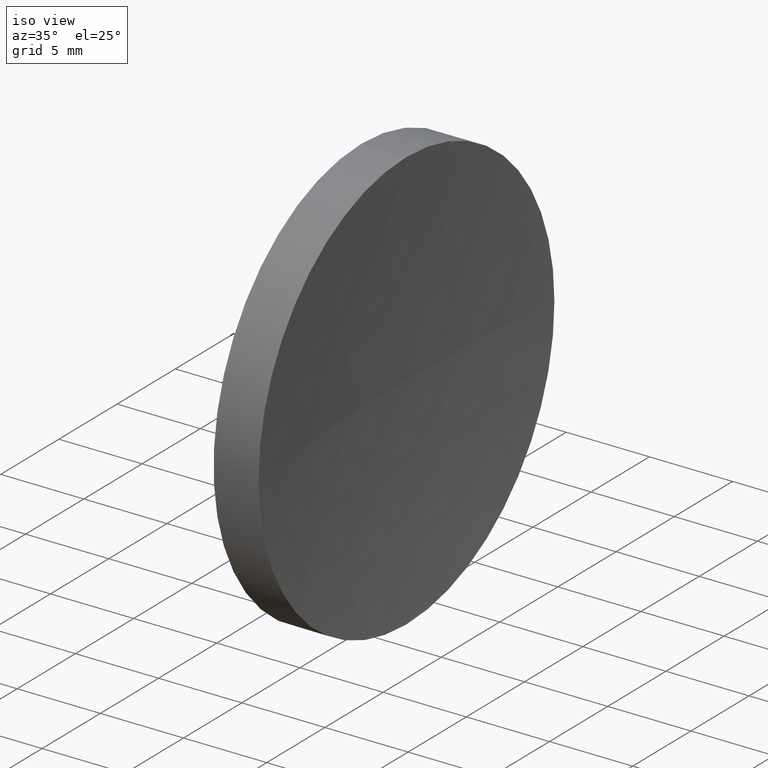
[diagram: clean part render]
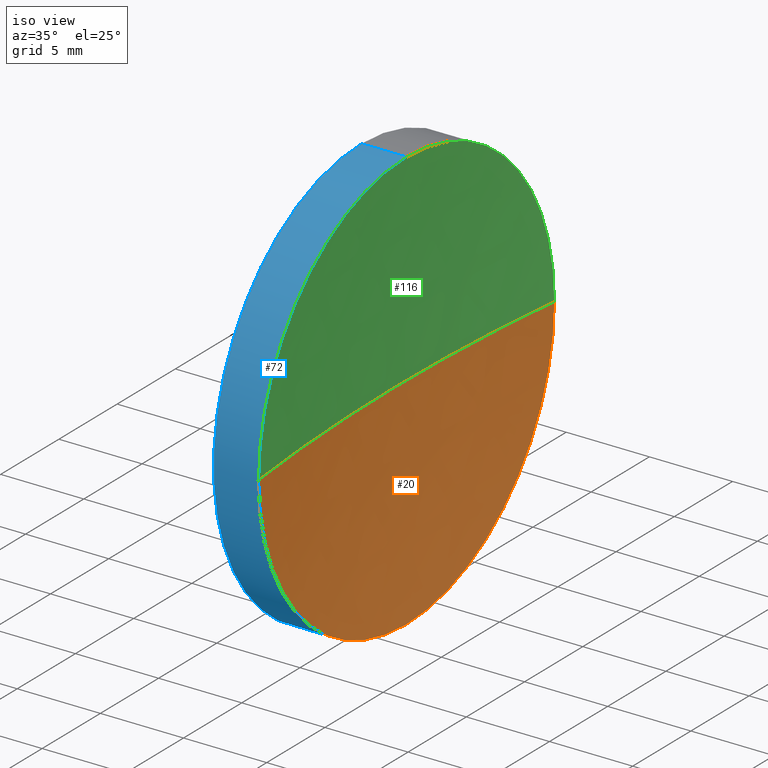
[diagram: same view with three faces highlighted in distinct colors, each labeled with its STEP entity id]
A machine part, iso view with three faces highlighted in distinct colors.
Their STEP definitions:

[orange] entity #20 — the highlighted spherical surface has radius 114.62 mm.
#2 = DIRECTION ( 'NONE',  ( -1.000000000000000000, -0.0000000000000000000, -0.0000000000000000000 ) ) ;
#4 = DIRECTION ( 'NONE',  ( 0.0000000000000000000, 0.0000000000000000000, 1.000000000000000000 ) ) ;
#7 = DIRECTION ( 'NONE',  ( -1.000000000000000000, -0.0000000000000000000, -0.0000000000000000000 ) ) ;
#9 = EDGE_CURVE ( 'NONE', #12, #182, #91, .T. ) ;
#12 = VERTEX_POINT ( 'NONE', #58 ) ;
#17 = AXIS2_PLACEMENT_3D ( 'NONE', #149, #174, #31 ) ;
#20 = ADVANCED_FACE ( 'NONE', ( #88 ), #170, .F. ) ;
#22 = VERTEX_POINT ( 'NONE', #176 ) ;
#24 = CIRCLE ( 'NONE', #29, 12.69999999999997400 ) ;
#26 = EDGE_CURVE ( 'NONE', #37, #182, #133, .T. ) ;
#29 = AXIS2_PLACEMENT_3D ( 'NONE', #81, #2, #95 ) ;
#31 = DIRECTION ( 'NONE',  ( 0.0000000000000000000, -1.000000000000000000, 0.0000000000000000000 ) ) ;
#37 = VERTEX_POINT ( 'NONE', #147 ) ;
#40 = CARTESIAN_POINT ( 'NONE',  ( 235.9829307920347200, 71.19398908659371700, 0.0000000000000000000 ) ) ;
#43 = EDGE_CURVE ( 'NONE', #37, #22, #24, .T. ) ;
#46 = ORIENTED_EDGE ( 'NONE', *, *, #43, .F. ) ;
#56 = CIRCLE ( 'NONE', #96, 12.69999999999997400 ) ;
#58 = CARTESIAN_POINT ( 'NONE',  ( 122.0686893645468100, 58.49398908659369300, 0.0000000000000000000 ) ) ;
#81 = CARTESIAN_POINT ( 'NONE',  ( 122.0686893645468100, 71.19398908659370300, 0.0000000000000000000 ) ) ;
#82 = DIRECTION ( 'NONE',  ( 0.0000000000000000000, -1.000000000000000000, -1.224646799147353000E-016 ) ) ;
#88 = FACE_OUTER_BOUND ( 'NONE', #105, .T. ) ;
#91 = CIRCLE ( 'NONE', #175, 114.6200000000000200 ) ;
#95 = DIRECTION ( 'NONE',  ( 0.0000000000000000000, 0.0000000000000000000, 1.000000000000000000 ) ) ;
#96 = AXIS2_PLACEMENT_3D ( 'NONE', #114, #7, #4 ) ;
#98 = CARTESIAN_POINT ( 'NONE',  ( 121.3629307920347000, 71.19398908659370300, 0.0000000000000000000 ) ) ;
#105 = EDGE_LOOP ( 'NONE', ( #46, #158, #131, #145 ) ) ;
#114 = CARTESIAN_POINT ( 'NONE',  ( 122.0686893645468100, 71.19398908659370300, 0.0000000000000000000 ) ) ;
#125 = DIRECTION ( 'NONE',  ( -1.000000000000000000, 0.0000000000000000000, 0.0000000000000000000 ) ) ;
#128 = DIRECTION ( 'NONE',  ( 0.0000000000000000000, 0.0000000000000000000, -1.000000000000000000 ) ) ;
#129 = DIRECTION ( 'NONE',  ( 0.0000000000000000000, -1.224646799147353200E-016, 1.000000000000000000 ) ) ;
#131 = ORIENTED_EDGE ( 'NONE', *, *, #9, .F. ) ;
#133 = CIRCLE ( 'NONE', #171, 114.6200000000000200 ) ;
#145 = ORIENTED_EDGE ( 'NONE', *, *, #156, .F. ) ;
#147 = CARTESIAN_POINT ( 'NONE',  ( 122.0686893645468100, 83.89398908659373400, 1.555301434917139600E-015 ) ) ;
#149 = CARTESIAN_POINT ( 'NONE',  ( 235.9829307920347200, 71.19398908659371700, 0.0000000000000000000 ) ) ;
#156 = EDGE_CURVE ( 'NONE', #22, #12, #56, .T. ) ;
#158 = ORIENTED_EDGE ( 'NONE', *, *, #26, .T. ) ;
#164 = CARTESIAN_POINT ( 'NONE',  ( 235.9829307920347200, 71.19398908659371700, 0.0000000000000000000 ) ) ;
#170 = SPHERICAL_SURFACE ( 'NONE', #17, 114.6200000000000200 ) ;
#171 = AXIS2_PLACEMENT_3D ( 'NONE', #40, #129, #82 ) ;
#174 = DIRECTION ( 'NONE',  ( 0.0000000000000000000, 0.0000000000000000000, 1.000000000000000000 ) ) ;
#175 = AXIS2_PLACEMENT_3D ( 'NONE', #164, #128, #125 ) ;
#176 = CARTESIAN_POINT ( 'NONE',  ( 122.0686893645468100, 71.19398908659370300, -12.69999999999997400 ) ) ;
#182 = VERTEX_POINT ( 'NONE', #98 ) ;

[blue] entity #72 — the highlighted cylindrical surface (partial cylindrical patch) has radius 12.7 mm, axis along (-1, -0, -0).
#3 = DIRECTION ( 'NONE',  ( 0.0000000000000000000, 0.0000000000000000000, 1.000000000000000000 ) ) ;
#4 = DIRECTION ( 'NONE',  ( 0.0000000000000000000, 0.0000000000000000000, 1.000000000000000000 ) ) ;
#7 = DIRECTION ( 'NONE',  ( -1.000000000000000000, -0.0000000000000000000, -0.0000000000000000000 ) ) ;
#12 = VERTEX_POINT ( 'NONE', #58 ) ;
#15 = DIRECTION ( 'NONE',  ( -1.000000000000000000, -0.0000000000000000000, -0.0000000000000000000 ) ) ;
#16 = DIRECTION ( 'NONE',  ( -1.000000000000000000, -0.0000000000000000000, -0.0000000000000000000 ) ) ;
#21 = CARTESIAN_POINT ( 'NONE',  ( 119.3629307920347200, 71.19398908659370300, 0.0000000000000000000 ) ) ;
#22 = VERTEX_POINT ( 'NONE', #176 ) ;
#25 = DIRECTION ( 'NONE',  ( -1.000000000000000000, -0.0000000000000000000, -0.0000000000000000000 ) ) ;
#27 = VECTOR ( 'NONE', #16, 1000.000000000000000 ) ;
#28 = ORIENTED_EDGE ( 'NONE', *, *, #93, .F. ) ;
#30 = LINE ( 'NONE', #126, #97 ) ;
#38 = LINE ( 'NONE', #57, #27 ) ;
#50 = ORIENTED_EDGE ( 'NONE', *, *, #127, .F. ) ;
#56 = CIRCLE ( 'NONE', #96, 12.69999999999997400 ) ;
#57 = CARTESIAN_POINT ( 'NONE',  ( 111.9552297575605700, 71.19398908659370300, -12.69999999999998900 ) ) ;
#58 = CARTESIAN_POINT ( 'NONE',  ( 122.0686893645468100, 58.49398908659369300, 0.0000000000000000000 ) ) ;
#67 = VERTEX_POINT ( 'NONE', #177 ) ;
#70 = DIRECTION ( 'NONE',  ( -1.000000000000000000, -0.0000000000000000000, -0.0000000000000000000 ) ) ;
#72 = ADVANCED_FACE ( 'NONE', ( #120 ), #112, .T. ) ;
#76 = EDGE_CURVE ( 'NONE', #67, #141, #30, .T. ) ;
#83 = EDGE_CURVE ( 'NONE', #12, #67, #146, .T. ) ;
#85 = DIRECTION ( 'NONE',  ( 0.0000000000000000000, 0.0000000000000000000, 1.000000000000000000 ) ) ;
#86 = ORIENTED_EDGE ( 'NONE', *, *, #156, .T. ) ;
#93 = EDGE_CURVE ( 'NONE', #22, #169, #38, .T. ) ;
#96 = AXIS2_PLACEMENT_3D ( 'NONE', #114, #7, #4 ) ;
#97 = VECTOR ( 'NONE', #99, 1000.000000000000000 ) ;
#99 = DIRECTION ( 'NONE',  ( -1.000000000000000000, -0.0000000000000000000, -0.0000000000000000000 ) ) ;
#104 = AXIS2_PLACEMENT_3D ( 'NONE', #165, #25, #85 ) ;
#107 = AXIS2_PLACEMENT_3D ( 'NONE', #109, #15, #3 ) ;
#109 = CARTESIAN_POINT ( 'NONE',  ( 111.9552297575605700, 71.19398908659370300, 0.0000000000000000000 ) ) ;
#112 = CYLINDRICAL_SURFACE ( 'NONE', #107, 12.69999999999998900 ) ;
#114 = CARTESIAN_POINT ( 'NONE',  ( 122.0686893645468100, 71.19398908659370300, 0.0000000000000000000 ) ) ;
#120 = FACE_OUTER_BOUND ( 'NONE', #123, .T. ) ;
#123 = EDGE_LOOP ( 'NONE', ( #28, #86, #178, #185, #50 ) ) ;
#126 = CARTESIAN_POINT ( 'NONE',  ( 111.9552297575605700, 71.19398908659370300, 12.69999999999998900 ) ) ;
#127 = EDGE_CURVE ( 'NONE', #169, #141, #137, .T. ) ;
#137 = CIRCLE ( 'NONE', #162, 12.70000000000000300 ) ;
#141 = VERTEX_POINT ( 'NONE', #144 ) ;
#144 = CARTESIAN_POINT ( 'NONE',  ( 119.3629307920347200, 71.19398908659370300, 12.70000000000000300 ) ) ;
#146 = CIRCLE ( 'NONE', #104, 12.69999999999997400 ) ;
#152 = CARTESIAN_POINT ( 'NONE',  ( 119.3629307920347200, 71.19398908659370300, -12.70000000000000300 ) ) ;
#153 = DIRECTION ( 'NONE',  ( 0.0000000000000000000, 0.0000000000000000000, 1.000000000000000000 ) ) ;
#156 = EDGE_CURVE ( 'NONE', #22, #12, #56, .T. ) ;
#162 = AXIS2_PLACEMENT_3D ( 'NONE', #21, #70, #153 ) ;
#165 = CARTESIAN_POINT ( 'NONE',  ( 122.0686893645468100, 71.19398908659370300, 0.0000000000000000000 ) ) ;
#169 = VERTEX_POINT ( 'NONE', #152 ) ;
#176 = CARTESIAN_POINT ( 'NONE',  ( 122.0686893645468100, 71.19398908659370300, -12.69999999999997400 ) ) ;
#177 = CARTESIAN_POINT ( 'NONE',  ( 122.0686893645468100, 71.19398908659370300, 12.69999999999997400 ) ) ;
#178 = ORIENTED_EDGE ( 'NONE', *, *, #83, .T. ) ;
#185 = ORIENTED_EDGE ( 'NONE', *, *, #76, .T. ) ;

[green] entity #116 — the highlighted spherical surface has radius 114.62 mm.
#9 = EDGE_CURVE ( 'NONE', #12, #182, #91, .T. ) ;
#12 = VERTEX_POINT ( 'NONE', #58 ) ;
#14 = EDGE_CURVE ( 'NONE', #67, #37, #124, .T. ) ;
#25 = DIRECTION ( 'NONE',  ( -1.000000000000000000, -0.0000000000000000000, -0.0000000000000000000 ) ) ;
#26 = EDGE_CURVE ( 'NONE', #37, #182, #133, .T. ) ;
#34 = EDGE_LOOP ( 'NONE', ( #161, #79, #60, #166 ) ) ;
#37 = VERTEX_POINT ( 'NONE', #147 ) ;
#40 = CARTESIAN_POINT ( 'NONE',  ( 235.9829307920347200, 71.19398908659371700, 0.0000000000000000000 ) ) ;
#41 = AXIS2_PLACEMENT_3D ( 'NONE', #89, #87, #71 ) ;
#53 = AXIS2_PLACEMENT_3D ( 'NONE', #163, #55, #108 ) ;
#55 = DIRECTION ( 'NONE',  ( -1.000000000000000000, -0.0000000000000000000, -0.0000000000000000000 ) ) ;
#58 = CARTESIAN_POINT ( 'NONE',  ( 122.0686893645468100, 58.49398908659369300, 0.0000000000000000000 ) ) ;
#60 = ORIENTED_EDGE ( 'NONE', *, *, #83, .F. ) ;
#67 = VERTEX_POINT ( 'NONE', #177 ) ;
#71 = DIRECTION ( 'NONE',  ( 0.0000000000000000000, -1.000000000000000000, 0.0000000000000000000 ) ) ;
#79 = ORIENTED_EDGE ( 'NONE', *, *, #14, .F. ) ;
#82 = DIRECTION ( 'NONE',  ( 0.0000000000000000000, -1.000000000000000000, -1.224646799147353000E-016 ) ) ;
#83 = EDGE_CURVE ( 'NONE', #12, #67, #146, .T. ) ;
#85 = DIRECTION ( 'NONE',  ( 0.0000000000000000000, 0.0000000000000000000, 1.000000000000000000 ) ) ;
#87 = DIRECTION ( 'NONE',  ( 0.0000000000000000000, 0.0000000000000000000, 1.000000000000000000 ) ) ;
#89 = CARTESIAN_POINT ( 'NONE',  ( 235.9829307920347200, 71.19398908659371700, 0.0000000000000000000 ) ) ;
#91 = CIRCLE ( 'NONE', #175, 114.6200000000000200 ) ;
#98 = CARTESIAN_POINT ( 'NONE',  ( 121.3629307920347000, 71.19398908659370300, 0.0000000000000000000 ) ) ;
#104 = AXIS2_PLACEMENT_3D ( 'NONE', #165, #25, #85 ) ;
#108 = DIRECTION ( 'NONE',  ( 0.0000000000000000000, 0.0000000000000000000, 1.000000000000000000 ) ) ;
#116 = ADVANCED_FACE ( 'NONE', ( #183 ), #140, .F. ) ;
#124 = CIRCLE ( 'NONE', #53, 12.69999999999997400 ) ;
#125 = DIRECTION ( 'NONE',  ( -1.000000000000000000, 0.0000000000000000000, 0.0000000000000000000 ) ) ;
#128 = DIRECTION ( 'NONE',  ( 0.0000000000000000000, 0.0000000000000000000, -1.000000000000000000 ) ) ;
#129 = DIRECTION ( 'NONE',  ( 0.0000000000000000000, -1.224646799147353200E-016, 1.000000000000000000 ) ) ;
#133 = CIRCLE ( 'NONE', #171, 114.6200000000000200 ) ;
#140 = SPHERICAL_SURFACE ( 'NONE', #41, 114.6200000000000200 ) ;
#146 = CIRCLE ( 'NONE', #104, 12.69999999999997400 ) ;
#147 = CARTESIAN_POINT ( 'NONE',  ( 122.0686893645468100, 83.89398908659373400, 1.555301434917139600E-015 ) ) ;
#161 = ORIENTED_EDGE ( 'NONE', *, *, #26, .F. ) ;
#163 = CARTESIAN_POINT ( 'NONE',  ( 122.0686893645468100, 71.19398908659370300, 0.0000000000000000000 ) ) ;
#164 = CARTESIAN_POINT ( 'NONE',  ( 235.9829307920347200, 71.19398908659371700, 0.0000000000000000000 ) ) ;
#165 = CARTESIAN_POINT ( 'NONE',  ( 122.0686893645468100, 71.19398908659370300, 0.0000000000000000000 ) ) ;
#166 = ORIENTED_EDGE ( 'NONE', *, *, #9, .T. ) ;
#171 = AXIS2_PLACEMENT_3D ( 'NONE', #40, #129, #82 ) ;
#175 = AXIS2_PLACEMENT_3D ( 'NONE', #164, #128, #125 ) ;
#177 = CARTESIAN_POINT ( 'NONE',  ( 122.0686893645468100, 71.19398908659370300, 12.69999999999997400 ) ) ;
#182 = VERTEX_POINT ( 'NONE', #98 ) ;
#183 = FACE_OUTER_BOUND ( 'NONE', #34, .T. ) ;